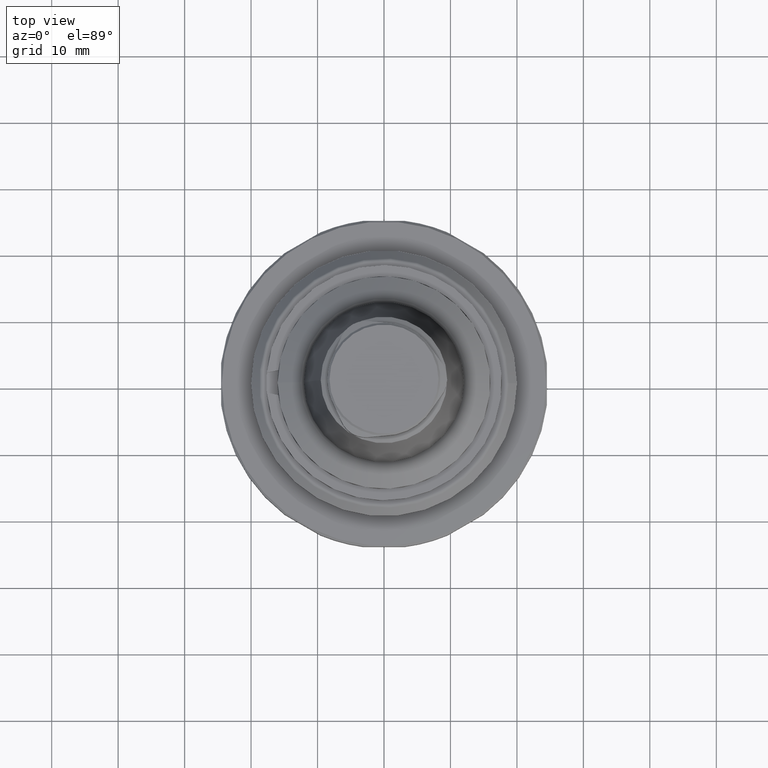
[diagram: clean part render]
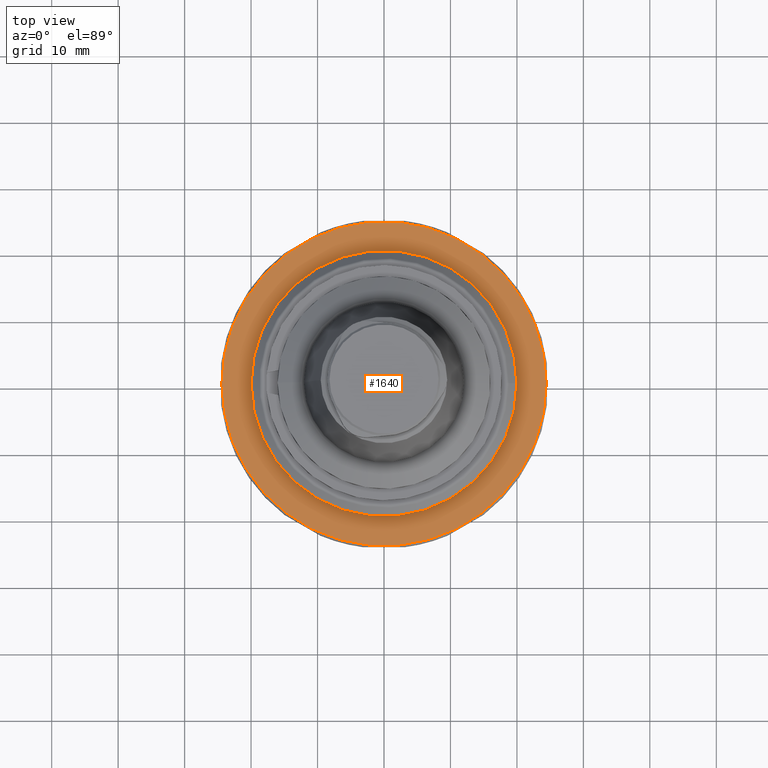
[diagram: same view with one face highlighted and labeled with its STEP entity id]
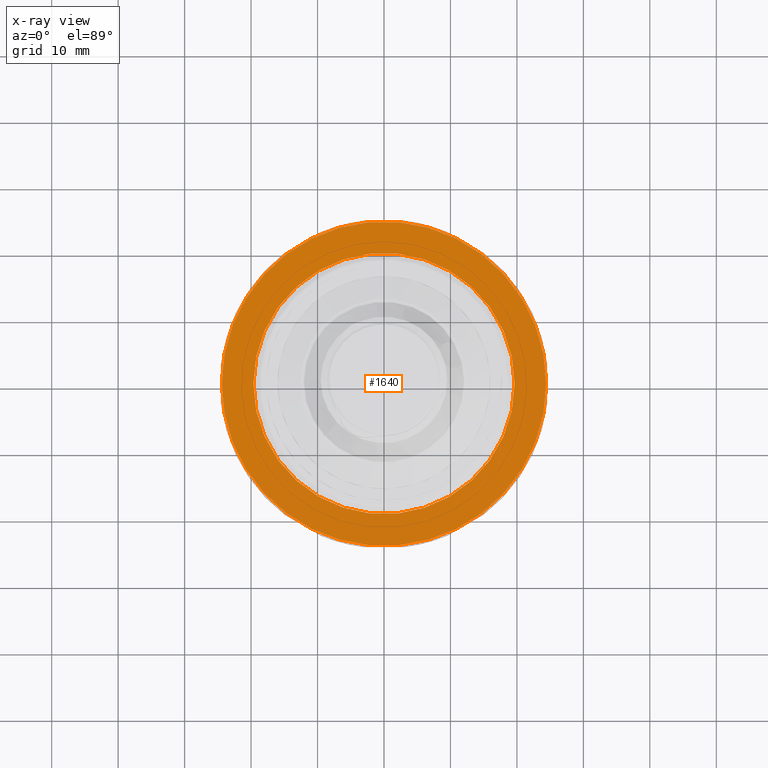
[diagram: x-ray of the same camera — body ghosted, the highlighted face saturated]
A machine part, top view. The second image highlights one B-rep face of the part: STEP entity #1640.
The next image is the same camera in x-ray: the body ghosted, the highlighted face saturated — about 0% of this face is hidden behind the body in this view.
In plain terms, the highlighted planar face has unit normal (-0, -0, -1).
Its self-contained STEP definition (entity closure, byte-faithful):
#45=PLANE('',#1825);
#576=ORIENTED_EDGE('',*,*,#923,.T.);
#577=ORIENTED_EDGE('',*,*,#924,.F.);
#923=EDGE_CURVE('',#1100,#1100,#1204,.T.);
#924=EDGE_CURVE('',#1101,#1101,#1205,.T.);
#1100=VERTEX_POINT('',#2876);
#1101=VERTEX_POINT('',#2879);
#1204=CIRCLE('',#1824,19.65);
#1205=CIRCLE('',#1826,24.3999999999999);
#1331=EDGE_LOOP('',(#576));
#1332=EDGE_LOOP('',(#577));
#1491=FACE_BOUND('',#1331,.T.);
#1492=FACE_BOUND('',#1332,.T.);
#1640=ADVANCED_FACE('',(#1491,#1492),#45,.F.);
#1824=AXIS2_PLACEMENT_3D('',#2875,#2206,#2207);
#1825=AXIS2_PLACEMENT_3D('',#2877,#2208,#2209);
#1826=AXIS2_PLACEMENT_3D('',#2878,#2210,#2211);
#2206=DIRECTION('',(-2.60563148754756E-18,-2.60563148754756E-18,-1.));
#2207=DIRECTION('',(1.,-6.12303176911189E-17,-2.60563148754756E-18));
#2208=DIRECTION('',(-2.60563148754756E-18,-2.60563148754756E-18,-1.));
#2209=DIRECTION('',(1.,-6.12303176911189E-17,-2.60563148754756E-18));
#2210=DIRECTION('',(-2.60563148754756E-18,-2.60563148754756E-18,-1.));
#2211=DIRECTION('',(1.,-6.12303176911189E-17,-2.60563148754756E-18));
#2875=CARTESIAN_POINT('',(-2.18873044953995E-17,-2.18873044953995E-17,-1.00000000000001));
#2876=CARTESIAN_POINT('',(19.65,-1.22506304712589E-15,-1.00000000000001));
#2877=CARTESIAN_POINT('',(19.65,-1.22506304712589E-15,-1.00000000000001));
#2878=CARTESIAN_POINT('',(-2.18873044953995E-17,-2.18873044953995E-17,-1.00000000000001));
#2879=CARTESIAN_POINT('',(24.3999999999999,-1.51590705615869E-15,-1.00000000000001));